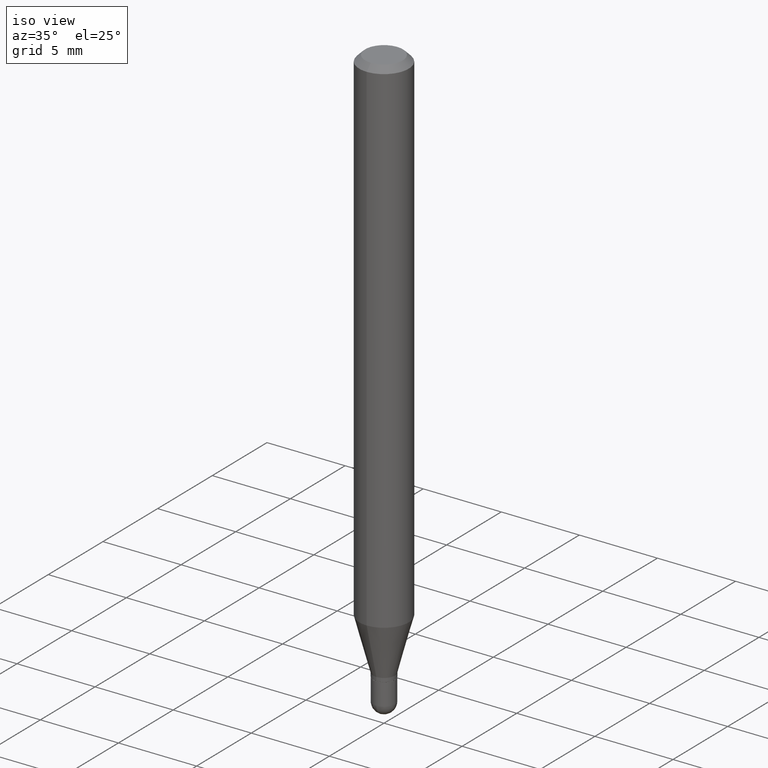
[diagram: clean part render]
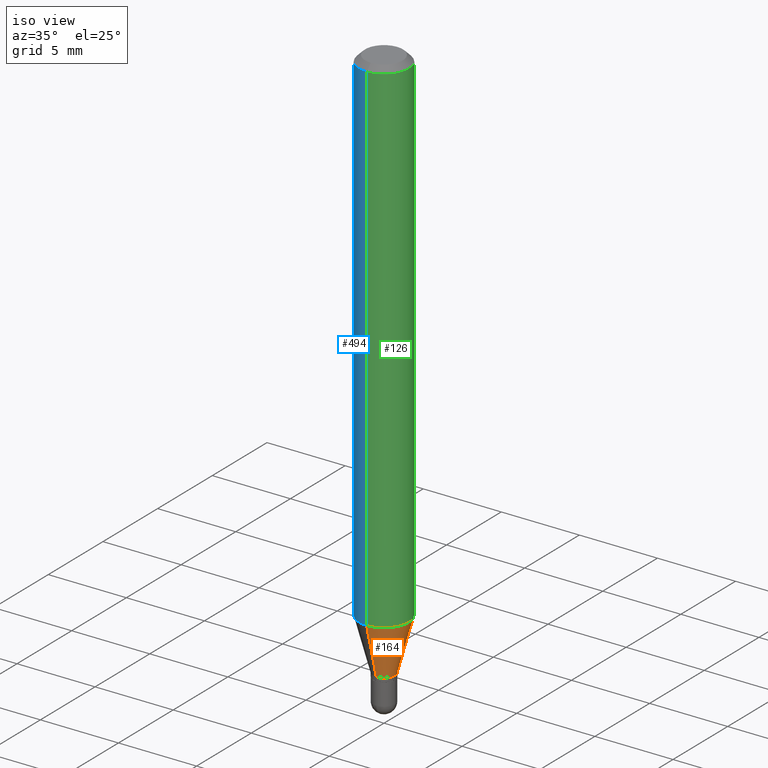
[diagram: same view with three faces highlighted in distinct colors, each labeled with its STEP entity id]
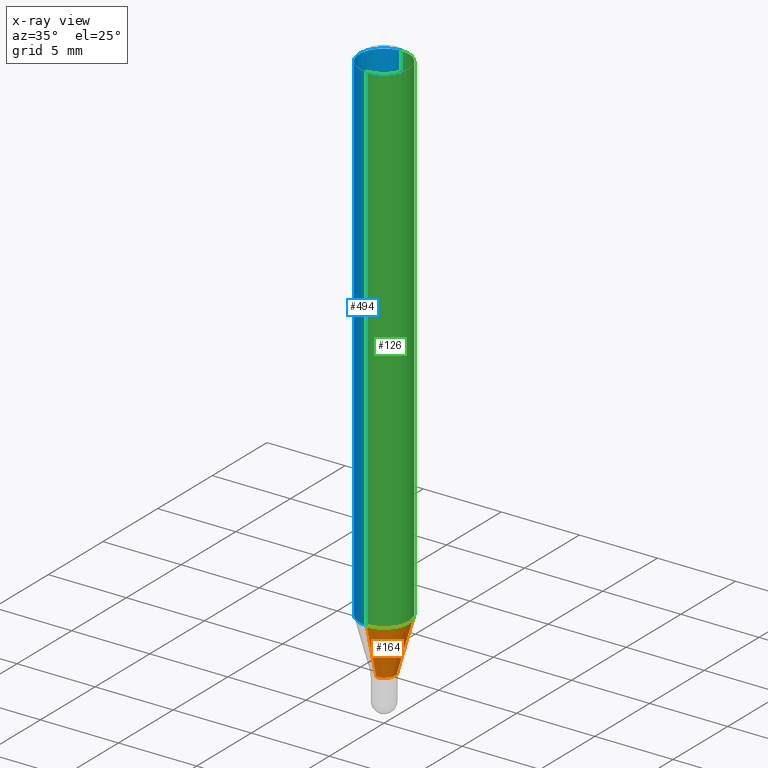
[diagram: x-ray of the same camera — body ghosted, the three highlighted faces saturated]
A machine part, iso view with three faces highlighted in distinct colors.
The next image is the same camera in x-ray (body ghosted, the three faces saturated) — at least one of them is partly hidden behind the body in this view.
Their STEP definitions:

[orange] entity #164 — the highlighted conical surface has half-angle 15 deg.
#71 = FACE_OUTER_BOUND ( 'NONE', #261, .T. ) ;
#77 = CARTESIAN_POINT ( 'NONE',  ( 3.440784576139787326E-29, -4.912499972106071714E-15, -1.407000000000000028 ) ) ;
#82 = CARTESIAN_POINT ( 'NONE',  ( 3.440784576139787326E-29, -4.912499972106071714E-15, -1.407000000000000028 ) ) ;
#85 = VERTEX_POINT ( 'NONE', #501 ) ;
#100 = VERTEX_POINT ( 'NONE', #352 ) ;
#117 = DIRECTION ( 'NONE',  ( -6.982962677686265922E-15, -1.000000000000000000, 0.000000000000000000 ) ) ;
#121 = DIRECTION ( 'NONE',  ( -1.807323732225330928E-15, -0.2588190451025182970, 0.9659258262890689783 ) ) ;
#145 = AXIS2_PLACEMENT_3D ( 'NONE', #77, #199, #117 ) ;
#157 = LINE ( 'NONE', #165, #201 ) ;
#164 = ADVANCED_FACE ( 'NONE', ( #71 ), #307, .T. ) ;
#165 = CARTESIAN_POINT ( 'NONE',  ( 1.953992523340613745E-16, 0.02749999999999501107, -1.407000000000000028 ) ) ;
#174 = VERTEX_POINT ( 'NONE', #240 ) ;
#180 = CIRCLE ( 'NONE', #438, 0.06250000000000000000 ) ;
#191 = VECTOR ( 'NONE', #121, 39.37007874015748143 ) ;
#199 = DIRECTION ( 'NONE',  ( -2.445475889225150789E-29, 3.491471195526703587E-15, 1.000000000000000000 ) ) ;
#201 = VECTOR ( 'NONE', #480, 39.37007874015748143 ) ;
#205 = CARTESIAN_POINT ( 'NONE',  ( -1.920314736363373880E-16, -0.02750000000000483655, -1.407000000000000028 ) ) ;
#207 = ORIENTED_EDGE ( 'NONE', *, *, #312, .F. ) ;
#240 = CARTESIAN_POINT ( 'NONE',  ( 4.440892098500934804E-16, 0.06249999999999551054, -1.276378221735089857 ) ) ;
#246 = CARTESIAN_POINT ( 'NONE',  ( 3.121352166785234497E-29, -4.456437795785661971E-15, -1.276378221735089635 ) ) ;
#247 = DIRECTION ( 'NONE',  ( -2.445475889225150789E-29, 3.491471195526703587E-15, 1.000000000000000000 ) ) ;
#248 = DIRECTION ( 'NONE',  ( -6.982962677686265922E-15, -1.000000000000000000, 4.370956789862821150E-15 ) ) ;
#261 = EDGE_LOOP ( 'NONE', ( #311, #265, #207, #512 ) ) ;
#265 = ORIENTED_EDGE ( 'NONE', *, *, #326, .T. ) ;
#271 = DIRECTION ( 'NONE',  ( -6.982962677686265922E-15, -1.000000000000000000, 0.000000000000000000 ) ) ;
#307 = CONICAL_SURFACE ( 'NONE', #145, 0.02749999999999992381, 0.2617993877991502960 ) ;
#311 = ORIENTED_EDGE ( 'NONE', *, *, #400, .T. ) ;
#312 = EDGE_CURVE ( 'NONE', #85, #174, #180, .T. ) ;
#326 = EDGE_CURVE ( 'NONE', #100, #174, #157, .T. ) ;
#329 = DIRECTION ( 'NONE',  ( -2.445475889225150789E-29, 3.491471195526703587E-15, 1.000000000000000000 ) ) ;
#352 = CARTESIAN_POINT ( 'NONE',  ( 3.197442310920775630E-16, 0.02749999999999501107, -1.407000000000000028 ) ) ;
#386 = EDGE_CURVE ( 'NONE', #413, #85, #437, .T. ) ;
#390 = AXIS2_PLACEMENT_3D ( 'NONE', #82, #247, #271 ) ;
#400 = EDGE_CURVE ( 'NONE', #413, #100, #416, .T. ) ;
#413 = VERTEX_POINT ( 'NONE', #491 ) ;
#416 = CIRCLE ( 'NONE', #390, 0.02749999999999992381 ) ;
#437 = LINE ( 'NONE', #205, #191 ) ;
#438 = AXIS2_PLACEMENT_3D ( 'NONE', #246, #329, #248 ) ;
#480 = DIRECTION ( 'NONE',  ( 1.839019923739601104E-15, 0.2588190451025250693, 0.9659258262890670910 ) ) ;
#491 = CARTESIAN_POINT ( 'NONE',  ( -1.920314736363373880E-16, -0.02750000000000483655, -1.407000000000000028 ) ) ;
#501 = CARTESIAN_POINT ( 'NONE',  ( -4.364351673553605587E-16, -0.06250000000000446865, -1.276378221735089191 ) ) ;
#512 = ORIENTED_EDGE ( 'NONE', *, *, #386, .F. ) ;

[blue] entity #494 — the highlighted cylindrical surface (edge-blend (fillet) strip) has radius 1.5875 mm, axis along (-0, 0, 1).
#23 = ORIENTED_EDGE ( 'NONE', *, *, #258, .F. ) ;
#31 = DIRECTION ( 'NONE',  ( -6.982962677686265922E-15, -1.000000000000000000, 3.483106191921935554E-15 ) ) ;
#33 = LINE ( 'NONE', #113, #500 ) ;
#47 = CIRCLE ( 'NONE', #357, 0.06250000000000000000 ) ;
#79 = AXIS2_PLACEMENT_3D ( 'NONE', #222, #377, #140 ) ;
#85 = VERTEX_POINT ( 'NONE', #501 ) ;
#87 = AXIS2_PLACEMENT_3D ( 'NONE', #234, #392, #31 ) ;
#103 = EDGE_LOOP ( 'NONE', ( #23, #373, #371, #368 ) ) ;
#110 = VERTEX_POINT ( 'NONE', #282 ) ;
#113 = CARTESIAN_POINT ( 'NONE',  ( -4.364351673553916201E-16, -0.06250000000000000000, 2.182169497204189742E-16 ) ) ;
#123 = DIRECTION ( 'NONE',  ( -2.445475889225150789E-29, 3.491471195526703587E-15, 1.000000000000000000 ) ) ;
#132 = LINE ( 'NONE', #408, #443 ) ;
#140 = DIRECTION ( 'NONE',  ( -6.982962677686265922E-15, -1.000000000000000000, 3.491471195526703587E-15 ) ) ;
#142 = EDGE_CURVE ( 'NONE', #85, #110, #33, .T. ) ;
#154 = DIRECTION ( 'NONE',  ( -2.445475889225150789E-29, 3.491471195526703587E-15, 1.000000000000000000 ) ) ;
#173 = FACE_OUTER_BOUND ( 'NONE', #103, .T. ) ;
#174 = VERTEX_POINT ( 'NONE', #240 ) ;
#222 = CARTESIAN_POINT ( 'NONE',  ( 0.000000000000000000, 0.000000000000000000, 0.000000000000000000 ) ) ;
#228 = CYLINDRICAL_SURFACE ( 'NONE', #79, 0.06250000000000000000 ) ;
#234 = CARTESIAN_POINT ( 'NONE',  ( 3.668213833837728461E-31, -5.237206793290058438E-17, -0.01500000000000000812 ) ) ;
#235 = EDGE_CURVE ( 'NONE', #291, #110, #263, .T. ) ;
#240 = CARTESIAN_POINT ( 'NONE',  ( 4.440892098500934804E-16, 0.06249999999999551054, -1.276378221735089857 ) ) ;
#258 = EDGE_CURVE ( 'NONE', #174, #291, #132, .T. ) ;
#263 = CIRCLE ( 'NONE', #87, 0.06250000000000000000 ) ;
#276 = EDGE_CURVE ( 'NONE', #174, #85, #47, .T. ) ;
#282 = CARTESIAN_POINT ( 'NONE',  ( -4.364351673553912750E-16, -0.06250000000000005551, -0.01499999999999979128 ) ) ;
#291 = VERTEX_POINT ( 'NONE', #367 ) ;
#357 = AXIS2_PLACEMENT_3D ( 'NONE', #372, #360, #482 ) ;
#360 = DIRECTION ( 'NONE',  ( -2.445475889225150789E-29, 3.491471195526703587E-15, 1.000000000000000000 ) ) ;
#367 = CARTESIAN_POINT ( 'NONE',  ( 4.440892098500940720E-16, 0.06249999999999995143, -0.01500000000000022669 ) ) ;
#368 = ORIENTED_EDGE ( 'NONE', *, *, #235, .F. ) ;
#371 = ORIENTED_EDGE ( 'NONE', *, *, #142, .T. ) ;
#372 = CARTESIAN_POINT ( 'NONE',  ( 3.121352166785234497E-29, -4.456437795785661971E-15, -1.276378221735089635 ) ) ;
#373 = ORIENTED_EDGE ( 'NONE', *, *, #276, .T. ) ;
#377 = DIRECTION ( 'NONE',  ( -2.445475889225150789E-29, 3.491471195526703587E-15, 1.000000000000000000 ) ) ;
#392 = DIRECTION ( 'NONE',  ( -2.445475889225150789E-29, 3.491471195526703587E-15, 1.000000000000000000 ) ) ;
#408 = CARTESIAN_POINT ( 'NONE',  ( 4.440892098500625669E-16, 0.06250000000000000000, -2.182169497204189742E-16 ) ) ;
#443 = VECTOR ( 'NONE', #123, 39.37007874015748143 ) ;
#482 = DIRECTION ( 'NONE',  ( -6.982962677686265922E-15, -1.000000000000000000, 4.370956789862821150E-15 ) ) ;
#494 = ADVANCED_FACE ( 'NONE', ( #173 ), #228, .T. ) ;
#500 = VECTOR ( 'NONE', #154, 39.37007874015748143 ) ;
#501 = CARTESIAN_POINT ( 'NONE',  ( -4.364351673553605587E-16, -0.06250000000000446865, -1.276378221735089191 ) ) ;

[green] entity #126 — the highlighted cylindrical surface (edge-blend (fillet) strip) has radius 1.5875 mm, axis along (-0, 0, 1).
#19 = DIRECTION ( 'NONE',  ( -2.445475889225150789E-29, 3.491471195526703587E-15, 1.000000000000000000 ) ) ;
#33 = LINE ( 'NONE', #113, #500 ) ;
#74 = FACE_OUTER_BOUND ( 'NONE', #163, .T. ) ;
#85 = VERTEX_POINT ( 'NONE', #501 ) ;
#94 = DIRECTION ( 'NONE',  ( -6.982962677686265922E-15, -1.000000000000000000, 3.483106191921935554E-15 ) ) ;
#95 = ORIENTED_EDGE ( 'NONE', *, *, #258, .T. ) ;
#110 = VERTEX_POINT ( 'NONE', #282 ) ;
#113 = CARTESIAN_POINT ( 'NONE',  ( -4.364351673553916201E-16, -0.06250000000000000000, 2.182169497204189742E-16 ) ) ;
#123 = DIRECTION ( 'NONE',  ( -2.445475889225150789E-29, 3.491471195526703587E-15, 1.000000000000000000 ) ) ;
#126 = ADVANCED_FACE ( 'NONE', ( #74 ), #147, .T. ) ;
#132 = LINE ( 'NONE', #408, #443 ) ;
#142 = EDGE_CURVE ( 'NONE', #85, #110, #33, .T. ) ;
#147 = CYLINDRICAL_SURFACE ( 'NONE', #262, 0.06250000000000000000 ) ;
#152 = CIRCLE ( 'NONE', #460, 0.06250000000000000000 ) ;
#154 = DIRECTION ( 'NONE',  ( -2.445475889225150789E-29, 3.491471195526703587E-15, 1.000000000000000000 ) ) ;
#163 = EDGE_LOOP ( 'NONE', ( #362, #95, #426, #449 ) ) ;
#174 = VERTEX_POINT ( 'NONE', #240 ) ;
#180 = CIRCLE ( 'NONE', #438, 0.06250000000000000000 ) ;
#240 = CARTESIAN_POINT ( 'NONE',  ( 4.440892098500934804E-16, 0.06249999999999551054, -1.276378221735089857 ) ) ;
#246 = CARTESIAN_POINT ( 'NONE',  ( 3.121352166785234497E-29, -4.456437795785661971E-15, -1.276378221735089635 ) ) ;
#248 = DIRECTION ( 'NONE',  ( -6.982962677686265922E-15, -1.000000000000000000, 4.370956789862821150E-15 ) ) ;
#258 = EDGE_CURVE ( 'NONE', #174, #291, #132, .T. ) ;
#259 = CARTESIAN_POINT ( 'NONE',  ( 3.668213833837728461E-31, -5.237206793290058438E-17, -0.01500000000000000812 ) ) ;
#262 = AXIS2_PLACEMENT_3D ( 'NONE', #395, #315, #510 ) ;
#282 = CARTESIAN_POINT ( 'NONE',  ( -4.364351673553912750E-16, -0.06250000000000005551, -0.01499999999999979128 ) ) ;
#291 = VERTEX_POINT ( 'NONE', #367 ) ;
#312 = EDGE_CURVE ( 'NONE', #85, #174, #180, .T. ) ;
#315 = DIRECTION ( 'NONE',  ( -2.445475889225150789E-29, 3.491471195526703587E-15, 1.000000000000000000 ) ) ;
#329 = DIRECTION ( 'NONE',  ( -2.445475889225150789E-29, 3.491471195526703587E-15, 1.000000000000000000 ) ) ;
#362 = ORIENTED_EDGE ( 'NONE', *, *, #312, .T. ) ;
#367 = CARTESIAN_POINT ( 'NONE',  ( 4.440892098500940720E-16, 0.06249999999999995143, -0.01500000000000022669 ) ) ;
#395 = CARTESIAN_POINT ( 'NONE',  ( 0.000000000000000000, 0.000000000000000000, 0.000000000000000000 ) ) ;
#407 = EDGE_CURVE ( 'NONE', #110, #291, #152, .T. ) ;
#408 = CARTESIAN_POINT ( 'NONE',  ( 4.440892098500625669E-16, 0.06250000000000000000, -2.182169497204189742E-16 ) ) ;
#426 = ORIENTED_EDGE ( 'NONE', *, *, #407, .F. ) ;
#438 = AXIS2_PLACEMENT_3D ( 'NONE', #246, #329, #248 ) ;
#443 = VECTOR ( 'NONE', #123, 39.37007874015748143 ) ;
#449 = ORIENTED_EDGE ( 'NONE', *, *, #142, .F. ) ;
#460 = AXIS2_PLACEMENT_3D ( 'NONE', #259, #19, #94 ) ;
#500 = VECTOR ( 'NONE', #154, 39.37007874015748143 ) ;
#501 = CARTESIAN_POINT ( 'NONE',  ( -4.364351673553605587E-16, -0.06250000000000446865, -1.276378221735089191 ) ) ;
#510 = DIRECTION ( 'NONE',  ( -6.982962677686265922E-15, -1.000000000000000000, 3.491471195526703587E-15 ) ) ;